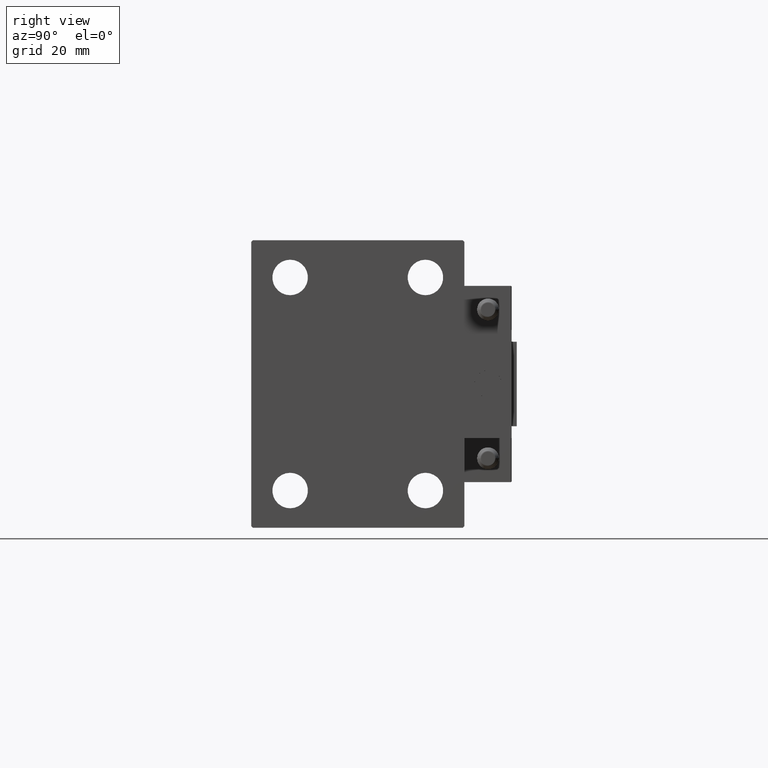
[diagram: clean part render]
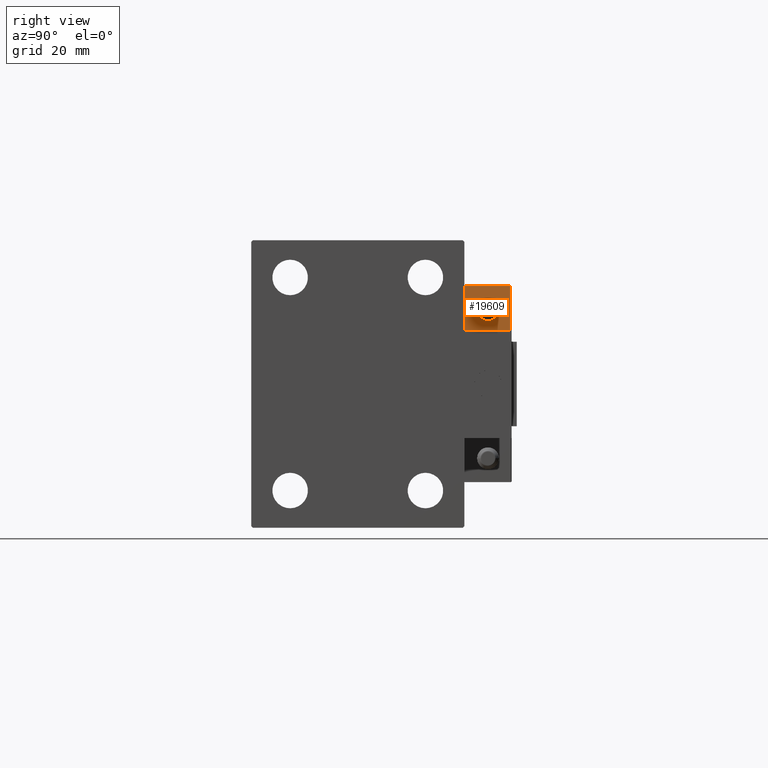
[diagram: same view with one face highlighted and labeled with its STEP entity id]
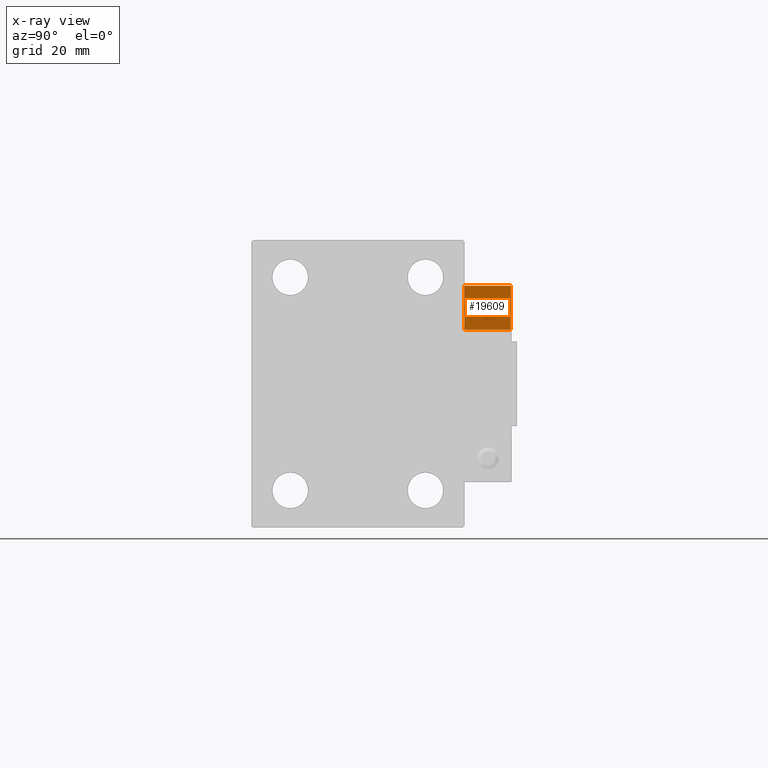
[diagram: x-ray of the same camera — body ghosted, the highlighted face saturated]
A machine part, right view. The second image highlights one B-rep face of the part: STEP entity #19609.
The next image is the same camera in x-ray: the body ghosted, the highlighted face saturated — about 19% of this face is hidden behind the body in this view.
In plain terms, the highlighted planar face has unit normal (-1, 0, 0).
Its self-contained STEP definition (entity closure, byte-faithful):
#1302 = CARTESIAN_POINT ( 'NONE',  ( -26.99999999999993605, 20.00000000000002132, 14.00000000000000000 ) ) ;
#3211 = LINE ( 'NONE', #23182, #13010 ) ;
#7393 = FACE_OUTER_BOUND ( 'NONE', #45682, .T. ) ;
#8990 = DIRECTION ( 'NONE',  ( -0.000000000000000000, -0.000000000000000000, -1.000000000000000000 ) ) ;
#9459 = ORIENTED_EDGE ( 'NONE', *, *, #26182, .T. ) ;
#9603 = ORIENTED_EDGE ( 'NONE', *, *, #37229, .T. ) ;
#10831 = DIRECTION ( 'NONE',  ( -8.006416042969869188E-16, -1.000000000000000000, 0.000000000000000000 ) ) ;
#12711 = VECTOR ( 'NONE', #49258, 1000.000000000000000 ) ;
#13010 = VECTOR ( 'NONE', #18581, 1000.000000000000000 ) ;
#13231 = VERTEX_POINT ( 'NONE', #31777 ) ;
#14517 = CARTESIAN_POINT ( 'NONE',  ( -26.99999999999994671, 7.000000000000005329, 0.000000000000000000 ) ) ;
#15358 = DIRECTION ( 'NONE',  ( 1.000000000000000000, -8.006416042969869188E-16, 0.000000000000000000 ) ) ;
#17249 = VECTOR ( 'NONE', #10831, 1000.000000000000000 ) ;
#18397 = VERTEX_POINT ( 'NONE', #43501 ) ;
#18581 = DIRECTION ( 'NONE',  ( -0.000000000000000000, -0.000000000000000000, -1.000000000000000000 ) ) ;
#19609 = ADVANCED_FACE ( 'NONE', ( #7393 ), #47050, .F. ) ;
#21178 = VERTEX_POINT ( 'NONE', #14517 ) ;
#23182 = CARTESIAN_POINT ( 'NONE',  ( -26.99999999999994671, 7.000000000000005329, 14.00000000000000000 ) ) ;
#26182 = EDGE_CURVE ( 'NONE', #40487, #21178, #37452, .T. ) ;
#26479 = CARTESIAN_POINT ( 'NONE',  ( -26.99999999999993605, 20.00000000000002132, 0.000000000000000000 ) ) ;
#29352 = LINE ( 'NONE', #49023, #12711 ) ;
#29524 = CARTESIAN_POINT ( 'NONE',  ( -26.99999999999993605, 20.00000000000002132, 0.000000000000000000 ) ) ;
#31211 = CARTESIAN_POINT ( 'NONE',  ( -26.99999999999993605, 20.00000000000002132, 14.00000000000000000 ) ) ;
#31441 = ORIENTED_EDGE ( 'NONE', *, *, #37616, .T. ) ;
#31777 = CARTESIAN_POINT ( 'NONE',  ( -26.99999999999994671, 7.000000000000005329, 13.70000000000000107 ) ) ;
#34092 = AXIS2_PLACEMENT_3D ( 'NONE', #31211, #15358, #35299 ) ;
#35299 = DIRECTION ( 'NONE',  ( 8.006416042969869188E-16, 1.000000000000000000, 0.000000000000000000 ) ) ;
#37229 = EDGE_CURVE ( 'NONE', #13231, #18397, #29352, .T. ) ;
#37243 = VECTOR ( 'NONE', #8990, 1000.000000000000000 ) ;
#37400 = ORIENTED_EDGE ( 'NONE', *, *, #48827, .F. ) ;
#37452 = LINE ( 'NONE', #29524, #17249 ) ;
#37616 = EDGE_CURVE ( 'NONE', #18397, #40487, #44030, .T. ) ;
#40487 = VERTEX_POINT ( 'NONE', #26479 ) ;
#43501 = CARTESIAN_POINT ( 'NONE',  ( -26.99999999999993605, 20.00000000000002132, 13.70000000000000107 ) ) ;
#44030 = LINE ( 'NONE', #1302, #37243 ) ;
#45682 = EDGE_LOOP ( 'NONE', ( #37400, #9603, #31441, #9459 ) ) ;
#47050 = PLANE ( 'NONE',  #34092 ) ;
#48827 = EDGE_CURVE ( 'NONE', #13231, #21178, #3211, .T. ) ;
#49023 = CARTESIAN_POINT ( 'NONE',  ( -26.99999999999993605, 20.00000000000002132, 13.70000000000000107 ) ) ;
#49258 = DIRECTION ( 'NONE',  ( 8.006416042969869188E-16, 1.000000000000000000, -0.000000000000000000 ) ) ;